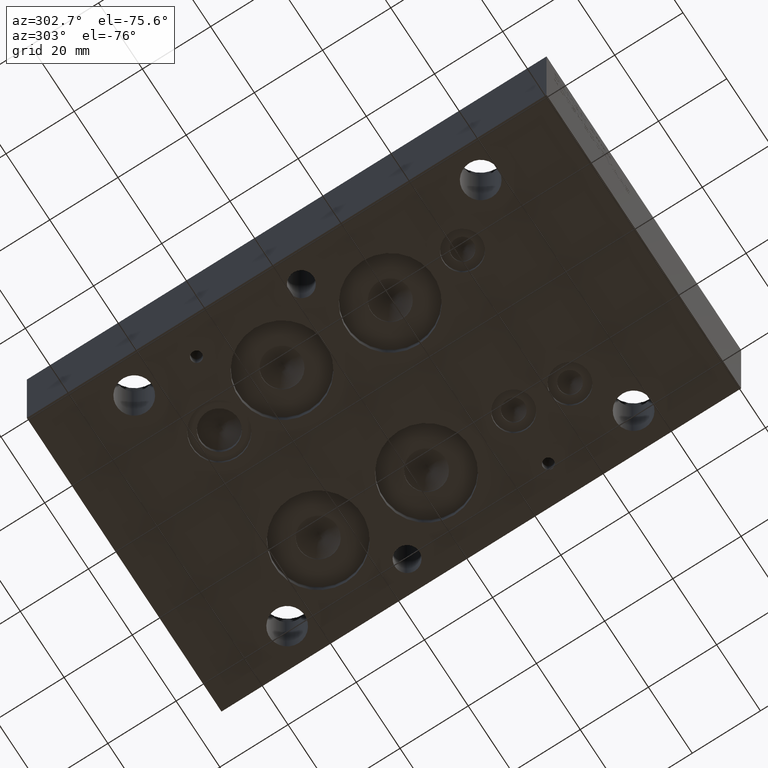
[diagram: clean part render]
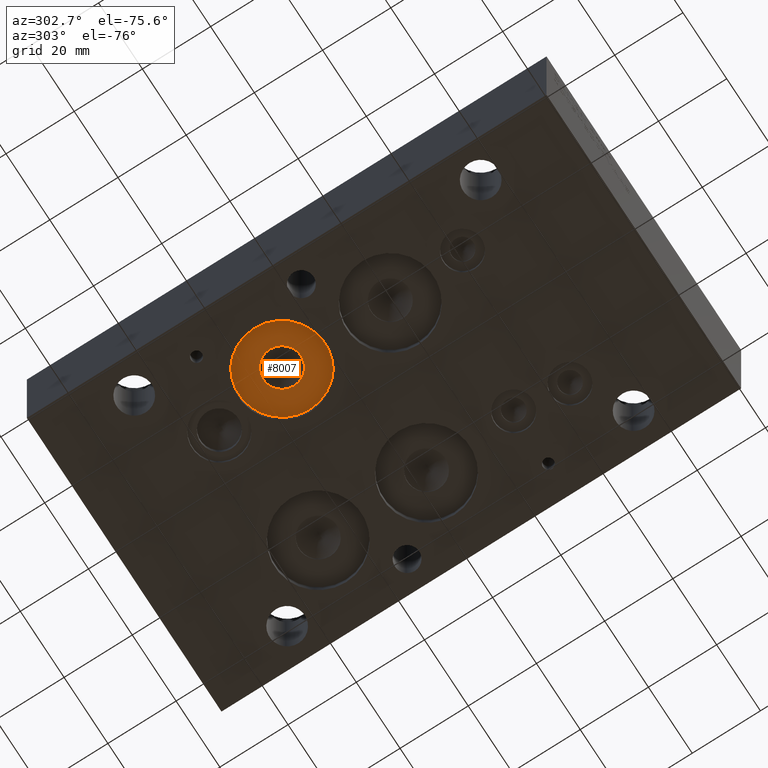
[diagram: same view with one face highlighted and labeled with its STEP entity id]
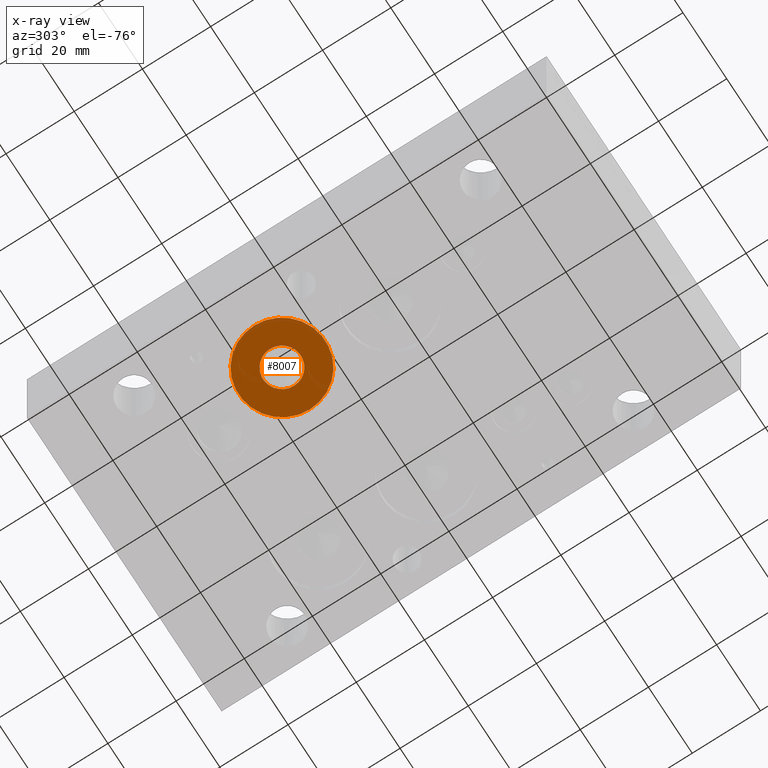
[diagram: x-ray of the same camera — body ghosted, the highlighted face saturated]
A machine part, auxiliary view. The second image highlights one B-rep face of the part: STEP entity #8007.
The next image is the same camera in x-ray: the body ghosted, the highlighted face saturated — about 0% of this face is hidden behind the body in this view.
In plain terms, the highlighted planar face has unit normal (0, 0, -1).
Its self-contained STEP definition (entity closure, byte-faithful):
#106=CIRCLE('',#8398,5.5626);
#109=CIRCLE('',#8404,12.7);
#429=FACE_BOUND('',#1301,.T.);
#838=FACE_OUTER_BOUND('',#1300,.T.);
#1300=EDGE_LOOP('',(#6795));
#1301=EDGE_LOOP('',(#6796));
#3726=VERTEX_POINT('',#13182);
#3730=VERTEX_POINT('',#13195);
#4766=EDGE_CURVE('',#3726,#3726,#106,.T.);
#4773=EDGE_CURVE('',#3730,#3730,#109,.T.);
#6795=ORIENTED_EDGE('',*,*,#4773,.T.);
#6796=ORIENTED_EDGE('',*,*,#4766,.T.);
#7298=PLANE('',#8405);
#8007=ADVANCED_FACE('',(#838,#429),#7298,.T.);
#8398=AXIS2_PLACEMENT_3D('',#13183,#9937,#9938);
#8404=AXIS2_PLACEMENT_3D('',#13197,#9953,#9954);
#8405=AXIS2_PLACEMENT_3D('',#13198,#9955,#9956);
#9937=DIRECTION('center_axis',(0.,0.,1.));
#9938=DIRECTION('ref_axis',(1.,0.,0.));
#9953=DIRECTION('center_axis',(0.,0.,-1.));
#9954=DIRECTION('ref_axis',(1.,0.,0.));
#9955=DIRECTION('center_axis',(0.,0.,-1.));
#9956=DIRECTION('ref_axis',(1.,0.,0.));
#13182=CARTESIAN_POINT('',(18.2372,92.8624,2.794));
#13183=CARTESIAN_POINT('Origin',(23.7998,92.8624,2.794));
#13195=CARTESIAN_POINT('',(11.0998,92.8624,2.794));
#13197=CARTESIAN_POINT('Origin',(23.7998,92.8624,2.794));
#13198=CARTESIAN_POINT('Origin',(23.7998,92.8624,2.794));